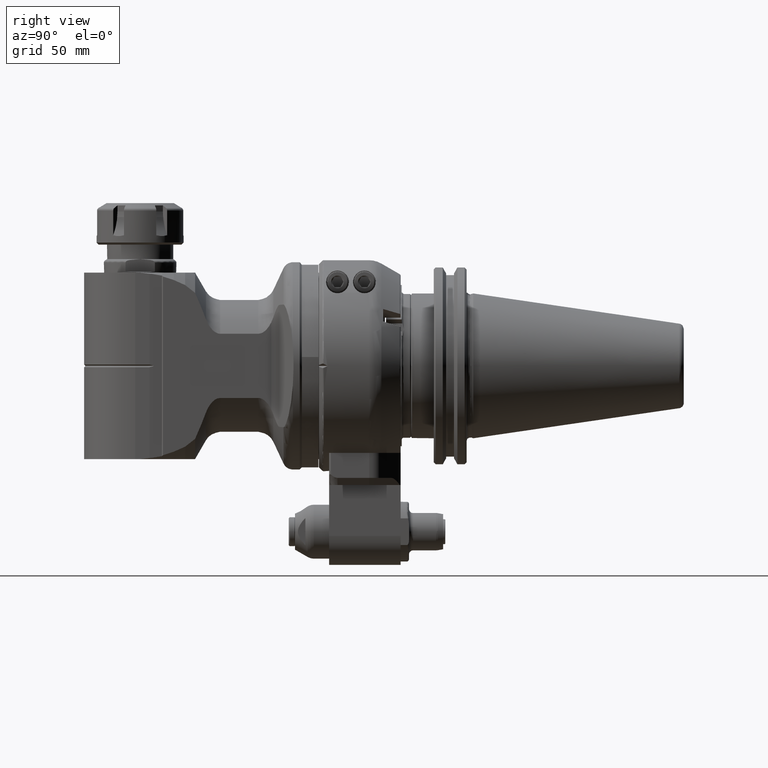
[diagram: clean part render]
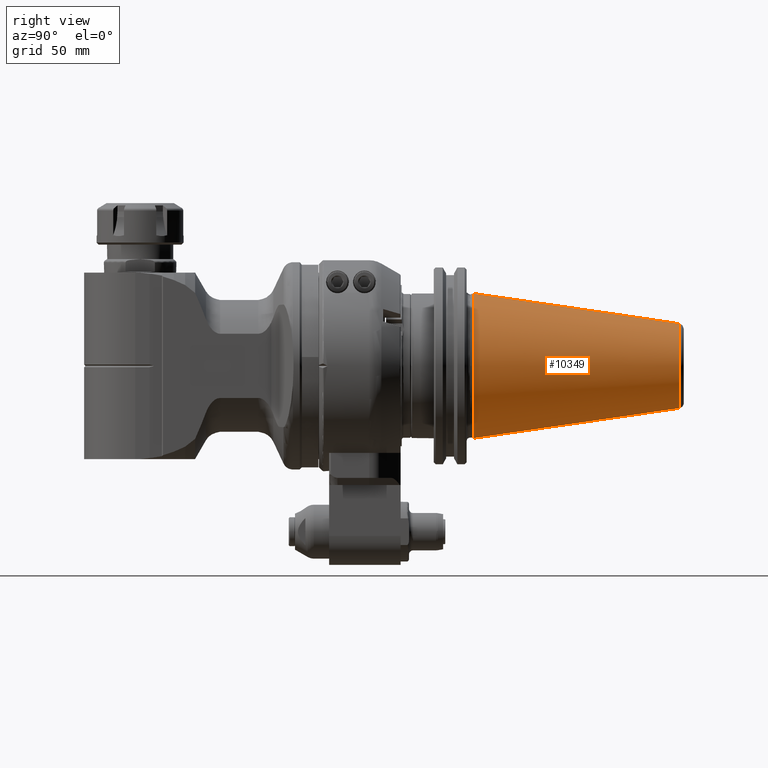
[diagram: same view with one face highlighted and labeled with its STEP entity id]
A machine part, right view. The second image highlights one B-rep face of the part: STEP entity #10349.
In plain terms, the highlighted conical surface has half-angle 8.297 deg.
Its self-contained STEP definition (entity closure, byte-faithful):
#186=CONICAL_SURFACE('',#11586,27.67265681028,0.144812411498922);
#1267=CIRCLE('',#11584,34.925);
#1268=CIRCLE('',#11585,34.925);
#1269=CIRCLE('',#11587,20.42031362057);
#1270=CIRCLE('',#11588,20.42031362057);
#1846=FACE_OUTER_BOUND('',#2539,.T.);
#2539=EDGE_LOOP('',(#9184,#9185,#9186,#9187,#9188,#9189));
#3214=LINE('',#20824,#3884);
#3884=VECTOR('',#14511,27.67265681028);
#4875=VERTEX_POINT('',#20817);
#4876=VERTEX_POINT('',#20818);
#4877=VERTEX_POINT('',#20823);
#4878=VERTEX_POINT('',#20825);
#6338=EDGE_CURVE('',#4875,#4876,#1267,.T.);
#6340=EDGE_CURVE('',#4876,#4875,#1268,.T.);
#6341=EDGE_CURVE('',#4875,#4877,#3214,.T.);
#6342=EDGE_CURVE('',#4878,#4877,#1269,.T.);
#6343=EDGE_CURVE('',#4877,#4878,#1270,.T.);
#9184=ORIENTED_EDGE('',*,*,#6338,.F.);
#9185=ORIENTED_EDGE('',*,*,#6341,.T.);
#9186=ORIENTED_EDGE('',*,*,#6342,.F.);
#9187=ORIENTED_EDGE('',*,*,#6343,.F.);
#9188=ORIENTED_EDGE('',*,*,#6341,.F.);
#9189=ORIENTED_EDGE('',*,*,#6340,.F.);
#10349=ADVANCED_FACE('',(#1846),#186,.T.);
#11584=AXIS2_PLACEMENT_3D('',#20819,#14504,#14505);
#11585=AXIS2_PLACEMENT_3D('',#20821,#14507,#14508);
#11586=AXIS2_PLACEMENT_3D('',#20822,#14509,#14510);
#11587=AXIS2_PLACEMENT_3D('',#20826,#14512,#14513);
#11588=AXIS2_PLACEMENT_3D('',#20827,#14514,#14515);
#14504=DIRECTION('center_axis',(0.,-1.,0.));
#14505=DIRECTION('ref_axis',(0.,0.,1.));
#14507=DIRECTION('center_axis',(0.,-1.,0.));
#14508=DIRECTION('ref_axis',(0.,0.,1.));
#14509=DIRECTION('center_axis',(0.,-1.,0.));
#14510=DIRECTION('ref_axis',(0.,0.,1.));
#14511=DIRECTION('',(-1.76724869581176E-17,0.98953299358046,0.144306807239621));
#14512=DIRECTION('center_axis',(0.,1.,0.));
#14513=DIRECTION('ref_axis',(0.,0.,1.));
#14514=DIRECTION('center_axis',(0.,1.,0.));
#14515=DIRECTION('ref_axis',(0.,0.,1.));
#20817=CARTESIAN_POINT('',(0.,74.5,-34.925));
#20818=CARTESIAN_POINT('',(4.27707894602218E-15,74.4999999999999,34.9250000000004));
#20819=CARTESIAN_POINT('Origin',(0.,74.5,0.));
#20821=CARTESIAN_POINT('Origin',(0.,74.5,0.));
#20822=CARTESIAN_POINT('Origin',(0.,124.230383509,0.));
#20823=CARTESIAN_POINT('',(2.50076717129998E-15,173.960767018098,-20.4203136205566));
#20824=CARTESIAN_POINT('',(3.38892305866126E-15,124.230383509,-27.67265681028));
#20825=CARTESIAN_POINT('',(-20.42031362057,173.9607670181,-2.50076717130162E-15));
#20826=CARTESIAN_POINT('Origin',(0.,173.9607670181,0.));
#20827=CARTESIAN_POINT('Origin',(0.,173.9607670181,0.));